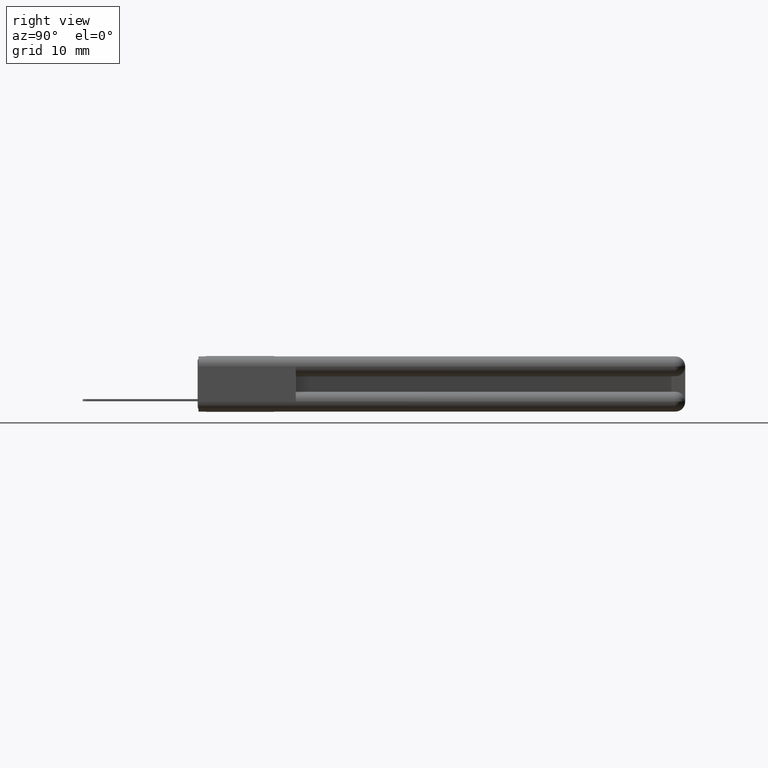
[diagram: clean part render]
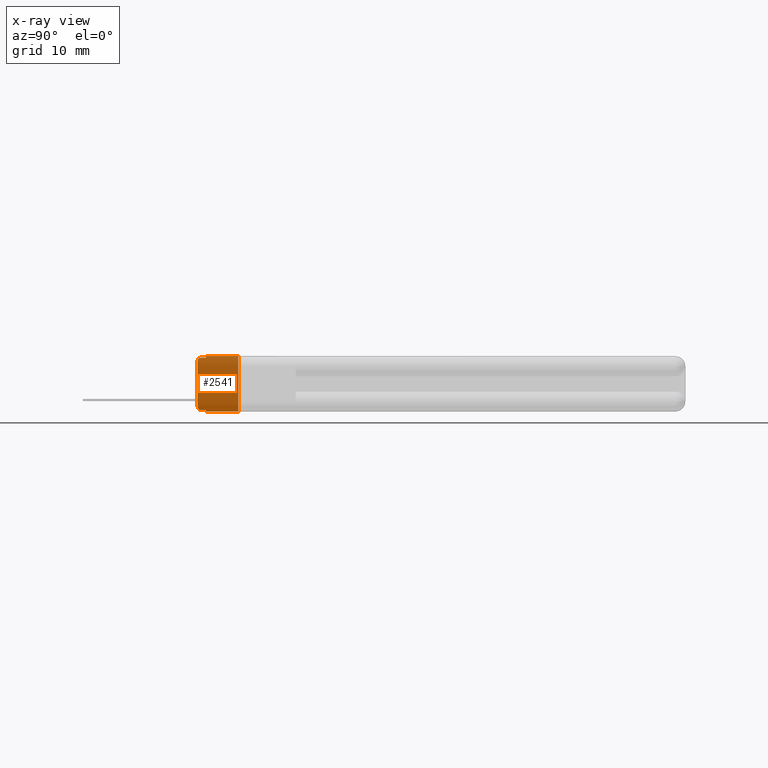
[diagram: x-ray — body ghosted, one internal face saturated and labeled with its STEP entity id]
A machine part, right view, then the same camera in x-ray: the body is ghosted and one INTERNAL B-rep face — a face not visible from any outside direction — is saturated and labeled: STEP entity #2541.
In plain terms, the highlighted planar face has unit normal (1, 0, 0).
Its self-contained STEP definition (entity closure, byte-faithful):
#375 = CARTESIAN_POINT ( 'NONE',  ( 0.0000000000000000000, 0.4729999999999999760, 0.0000000000000000000 ) ) ;
#747 = CARTESIAN_POINT ( 'NONE',  ( 0.0000000000000000000, 0.02000000000000000042, -0.02999999999999999542 ) ) ;
#755 = CARTESIAN_POINT ( 'NONE',  ( 1.083812417245411660E-17, 0.05099999999999999672, -0.009999999999999995004 ) ) ;
#797 = CARTESIAN_POINT ( 'NONE',  ( 0.0000000000000000000, 0.0000000000000000000, -0.02999999999999999542 ) ) ;
#1224 = EDGE_CURVE ( 'NONE', #3533, #9216, #1983, .T. ) ;
#1232 = DIRECTION ( 'NONE',  ( -0.0000000000000000000, -1.000000000000000000, -0.0000000000000000000 ) ) ;
#1452 = CARTESIAN_POINT ( 'NONE',  ( 0.0000000000000000000, 0.05099999999999999672, 0.0000000000000000000 ) ) ;
#1782 = CIRCLE ( 'NONE', #5122, 0.01999999999999999001 ) ;
#1917 = VERTEX_POINT ( 'NONE', #4640 ) ;
#1963 = EDGE_CURVE ( 'NONE', #11552, #2282, #3786, .T. ) ;
#1983 = LINE ( 'NONE', #3123, #3974 ) ;
#2282 = VERTEX_POINT ( 'NONE', #5889 ) ;
#2313 = DIRECTION ( 'NONE',  ( 0.0000000000000000000, 0.0000000000000000000, -1.000000000000000000 ) ) ;
#2541 = ADVANCED_FACE ( 'NONE', ( #10002 ), #7371, .F. ) ;
#2900 = VERTEX_POINT ( 'NONE', #7893 ) ;
#2942 = VECTOR ( 'NONE', #2964, 39.37007874015748143 ) ;
#2945 = LINE ( 'NONE', #3128, #3594 ) ;
#2964 = DIRECTION ( 'NONE',  ( 0.0000000000000000000, 0.0000000000000000000, -1.000000000000000000 ) ) ;
#3074 = ORIENTED_EDGE ( 'NONE', *, *, #1224, .T. ) ;
#3096 = EDGE_CURVE ( 'NONE', #8492, #9216, #7237, .T. ) ;
#3123 = CARTESIAN_POINT ( 'NONE',  ( 0.0000000000000000000, 0.4729999999999999760, -0.3430000000000000271 ) ) ;
#3128 = CARTESIAN_POINT ( 'NONE',  ( 0.0000000000000000000, 0.0000000000000000000, 0.0000000000000000000 ) ) ;
#3288 = DIRECTION ( 'NONE',  ( 0.0000000000000000000, 0.0000000000000000000, -1.000000000000000000 ) ) ;
#3337 = EDGE_CURVE ( 'NONE', #3533, #1917, #10017, .T. ) ;
#3360 = CARTESIAN_POINT ( 'NONE',  ( 0.0000000000000000000, 0.05099999999999999672, 0.0000000000000000000 ) ) ;
#3533 = VERTEX_POINT ( 'NONE', #11791 ) ;
#3594 = VECTOR ( 'NONE', #5181, 39.37007874015748143 ) ;
#3628 = LINE ( 'NONE', #11781, #5507 ) ;
#3786 = LINE ( 'NONE', #5841, #5629 ) ;
#3885 = VERTEX_POINT ( 'NONE', #3360 ) ;
#3974 = VECTOR ( 'NONE', #1232, 39.37007874015748143 ) ;
#4175 = LINE ( 'NONE', #10224, #7189 ) ;
#4469 = EDGE_CURVE ( 'NONE', #10778, #2282, #11748, .T. ) ;
#4640 = CARTESIAN_POINT ( 'NONE',  ( 0.0000000000000000000, 0.2499999999999999722, 0.0000000000000000000 ) ) ;
#5001 = ORIENTED_EDGE ( 'NONE', *, *, #1963, .F. ) ;
#5036 = DIRECTION ( 'NONE',  ( 0.0000000000000000000, 0.0000000000000000000, 1.000000000000000000 ) ) ;
#5122 = AXIS2_PLACEMENT_3D ( 'NONE', #7262, #6226, #11392 ) ;
#5181 = DIRECTION ( 'NONE',  ( -0.0000000000000000000, -0.0000000000000000000, 1.000000000000000000 ) ) ;
#5234 = VERTEX_POINT ( 'NONE', #8752 ) ;
#5430 = ORIENTED_EDGE ( 'NONE', *, *, #3337, .F. ) ;
#5507 = VECTOR ( 'NONE', #10539, 39.37007874015748143 ) ;
#5629 = VECTOR ( 'NONE', #6631, 39.37007874015748143 ) ;
#5841 = CARTESIAN_POINT ( 'NONE',  ( 1.083812417245411660E-17, 0.05099999999999999672, -0.009999999999999995004 ) ) ;
#5889 = CARTESIAN_POINT ( 'NONE',  ( 1.083812417245411660E-17, 0.02000000000000000042, -0.009999999999999995004 ) ) ;
#6029 = ORIENTED_EDGE ( 'NONE', *, *, #9841, .T. ) ;
#6226 = DIRECTION ( 'NONE',  ( -1.000000000000000000, 0.0000000000000000000, -0.0000000000000000000 ) ) ;
#6229 = CARTESIAN_POINT ( 'NONE',  ( 0.0000000000000000000, 0.2499999999999999722, 0.0000000000000000000 ) ) ;
#6578 = ORIENTED_EDGE ( 'NONE', *, *, #3096, .F. ) ;
#6631 = DIRECTION ( 'NONE',  ( -0.0000000000000000000, -1.000000000000000000, -0.0000000000000000000 ) ) ;
#6941 = EDGE_LOOP ( 'NONE', ( #11722, #11490, #5001, #11793, #7069, #5430, #3074, #6578, #6029, #7916 ) ) ;
#7061 = EDGE_CURVE ( 'NONE', #2900, #10778, #2945, .T. ) ;
#7069 = ORIENTED_EDGE ( 'NONE', *, *, #7208, .F. ) ;
#7135 = AXIS2_PLACEMENT_3D ( 'NONE', #747, #10718, #10590 ) ;
#7189 = VECTOR ( 'NONE', #9306, 39.37007874015748143 ) ;
#7208 = EDGE_CURVE ( 'NONE', #1917, #3885, #4175, .T. ) ;
#7237 = LINE ( 'NONE', #1452, #12270 ) ;
#7262 = CARTESIAN_POINT ( 'NONE',  ( 0.0000000000000000000, 0.02000000000000000042, -0.3130000000000000004 ) ) ;
#7371 = PLANE ( 'NONE',  #11340 ) ;
#7683 = VECTOR ( 'NONE', #5036, 39.37007874015748143 ) ;
#7893 = CARTESIAN_POINT ( 'NONE',  ( 0.0000000000000000000, 0.0000000000000000000, -0.3130000000000000004 ) ) ;
#7916 = ORIENTED_EDGE ( 'NONE', *, *, #8857, .T. ) ;
#8019 = LINE ( 'NONE', #10992, #2942 ) ;
#8492 = VERTEX_POINT ( 'NONE', #10497 ) ;
#8752 = CARTESIAN_POINT ( 'NONE',  ( 1.083812417245411660E-17, 0.02000000000000000042, -0.3329999999999999627 ) ) ;
#8857 = EDGE_CURVE ( 'NONE', #5234, #2900, #1782, .T. ) ;
#8951 = CARTESIAN_POINT ( 'NONE',  ( 0.0000000000000000000, 0.05099999999999999672, -0.3430000000000000271 ) ) ;
#9216 = VERTEX_POINT ( 'NONE', #8951 ) ;
#9306 = DIRECTION ( 'NONE',  ( -0.0000000000000000000, -1.000000000000000000, -0.0000000000000000000 ) ) ;
#9565 = EDGE_CURVE ( 'NONE', #3885, #11552, #8019, .T. ) ;
#9841 = EDGE_CURVE ( 'NONE', #8492, #5234, #3628, .T. ) ;
#10002 = FACE_OUTER_BOUND ( 'NONE', #6941, .T. ) ;
#10017 = LINE ( 'NONE', #6229, #7683 ) ;
#10224 = CARTESIAN_POINT ( 'NONE',  ( 0.0000000000000000000, 0.4729999999999999760, 0.0000000000000000000 ) ) ;
#10400 = DIRECTION ( 'NONE',  ( 1.000000000000000000, -0.0000000000000000000, 0.0000000000000000000 ) ) ;
#10497 = CARTESIAN_POINT ( 'NONE',  ( 1.083812417245411660E-17, 0.05099999999999999672, -0.3329999999999999627 ) ) ;
#10539 = DIRECTION ( 'NONE',  ( -0.0000000000000000000, -1.000000000000000000, -0.0000000000000000000 ) ) ;
#10590 = DIRECTION ( 'NONE',  ( 0.0000000000000000000, 0.0000000000000000000, -1.000000000000000000 ) ) ;
#10718 = DIRECTION ( 'NONE',  ( -1.000000000000000000, 0.0000000000000000000, -0.0000000000000000000 ) ) ;
#10778 = VERTEX_POINT ( 'NONE', #797 ) ;
#10992 = CARTESIAN_POINT ( 'NONE',  ( 0.0000000000000000000, 0.05099999999999999672, 0.0000000000000000000 ) ) ;
#11340 = AXIS2_PLACEMENT_3D ( 'NONE', #375, #10400, #3288 ) ;
#11392 = DIRECTION ( 'NONE',  ( 0.0000000000000000000, 0.0000000000000000000, -1.000000000000000000 ) ) ;
#11490 = ORIENTED_EDGE ( 'NONE', *, *, #4469, .T. ) ;
#11552 = VERTEX_POINT ( 'NONE', #755 ) ;
#11722 = ORIENTED_EDGE ( 'NONE', *, *, #7061, .T. ) ;
#11748 = CIRCLE ( 'NONE', #7135, 0.02000000000000000042 ) ;
#11781 = CARTESIAN_POINT ( 'NONE',  ( 1.083812417245411660E-17, 0.05099999999999999672, -0.3329999999999999627 ) ) ;
#11791 = CARTESIAN_POINT ( 'NONE',  ( 0.0000000000000000000, 0.2499999999999999722, -0.3430000000000000271 ) ) ;
#11793 = ORIENTED_EDGE ( 'NONE', *, *, #9565, .F. ) ;
#12270 = VECTOR ( 'NONE', #2313, 39.37007874015748143 ) ;